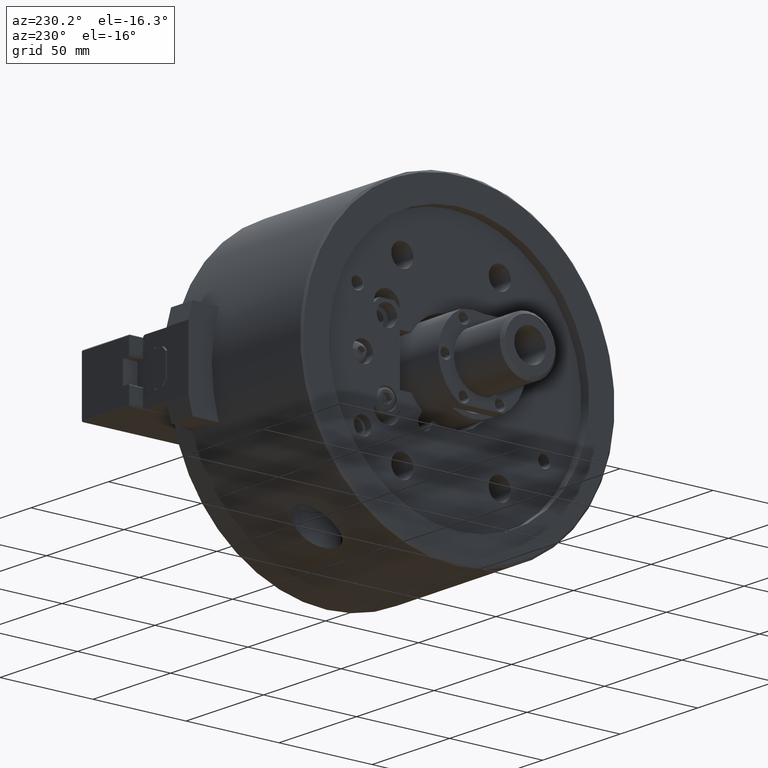
[diagram: clean part render]
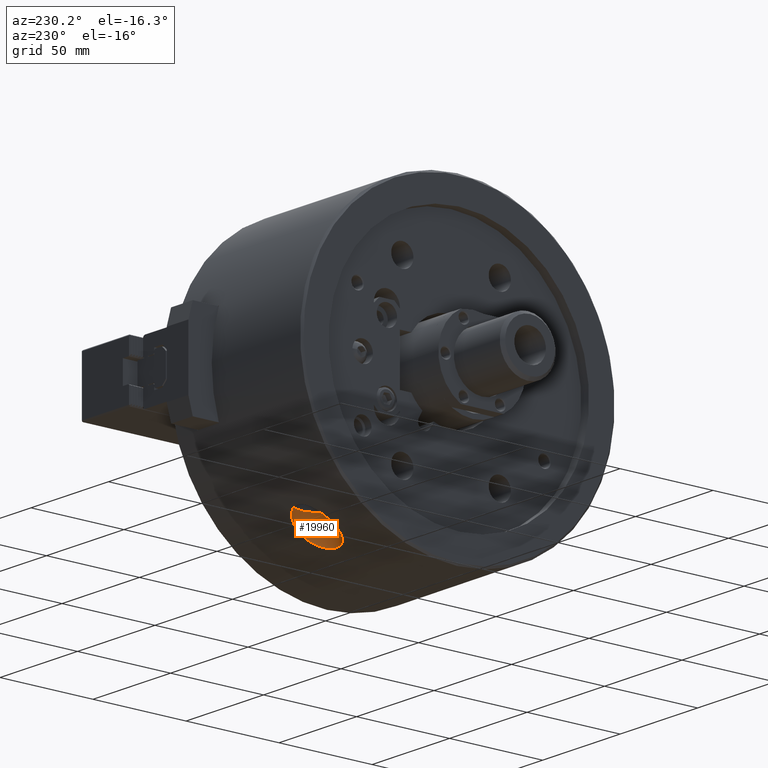
[diagram: same view with one face highlighted and labeled with its STEP entity id]
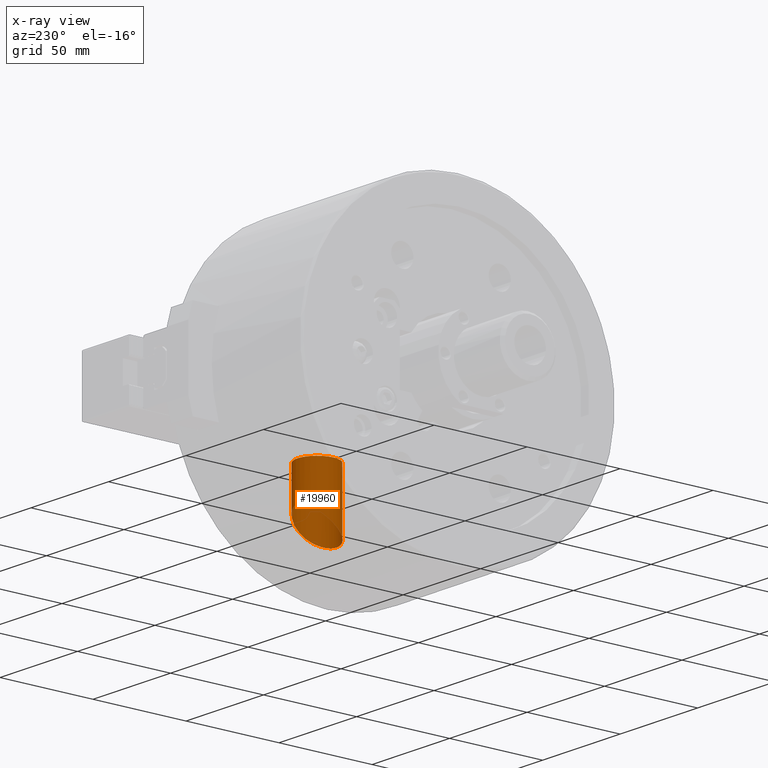
[diagram: x-ray of the same camera — body ghosted, the highlighted face saturated]
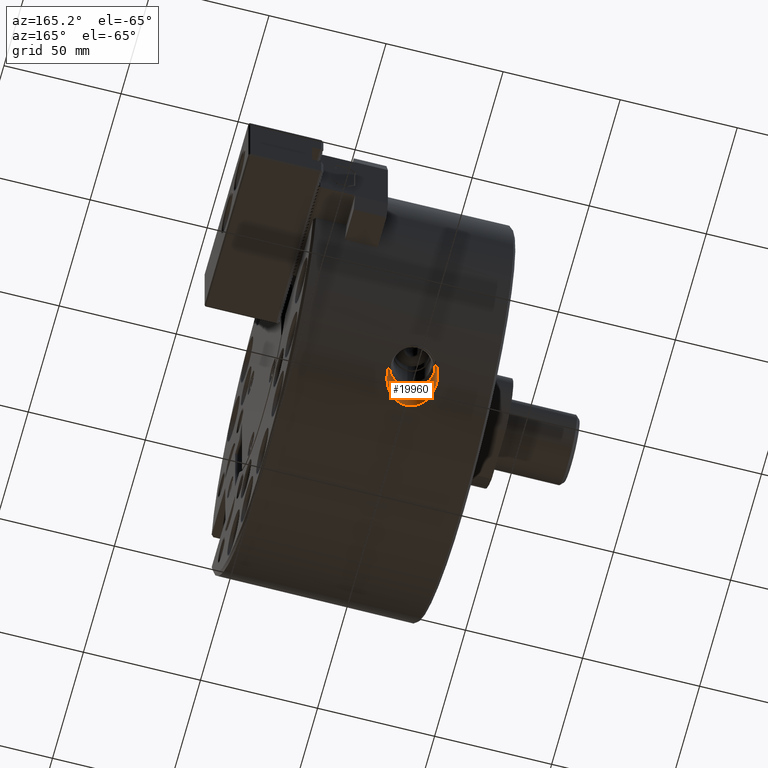
[diagram: same view with one face highlighted and labeled with its STEP entity id]
A machine part, auxiliary view. The second image highlights one B-rep face of the part: STEP entity #19960.
The next image is the same camera in x-ray: the body ghosted, the highlighted face saturated — about 1% of this face is hidden behind the body in this view.
A second angle (auxiliary view) of the same face is appended — the face is thin or edge-on in the first view.
In plain terms, the highlighted cylindrical surface (bore or boss wall) has radius 10.5 mm, axis along (0, 0, 1).
Its self-contained STEP definition (entity closure, byte-faithful):
#200=B_SPLINE_CURVE_WITH_KNOTS('',3,(#28858,#28859,#28860,#28861,#28862,
#28863,#28864,#28865,#28866,#28867,#28868,#28869,#28870,#28871,#28872,#28873,
#28874,#28875,#28876,#28877,#28878,#28879),.UNSPECIFIED.,.T.,.F.,(1,1,1,
1,1,1,1,1,1,1,1,1,1,1,1,1,1,1,1,1,1,1,1,1,1,1),(-0.0067951657441945,-0.00453011049612967,
-0.00226505524806483,0.,0.00453011049612967,0.00906022099225934,0.013590331488389,
0.0181204419845187,0.0226505524806484,0.027180662976778,0.0317107734729077,
0.0362408839690374,0.040770994465167,0.0453011049612967,0.0498312154574264,
0.0520962707054912,0.054361325953556,0.0588914364496857,0.0634215469458154,
0.0656866021938802,0.067951657441945,0.0702167126900099,0.0724817679380747,
0.0770118784342044,0.0815419889303341,0.0860720994264637),.UNSPECIFIED.);
#318=CYLINDRICAL_SURFACE('',#21593,10.5);
#5357=ORIENTED_EDGE('',*,*,#10262,.T.);
#5358=ORIENTED_EDGE('',*,*,#10569,.T.);
#10262=EDGE_CURVE('',#13028,#13028,#200,.T.);
#10569=EDGE_CURVE('',#13308,#13308,#15207,.T.);
#13028=VERTEX_POINT('',#28880);
#13308=VERTEX_POINT('',#29687);
#15207=CIRCLE('',#21594,10.5);
#15995=EDGE_LOOP('',(#5357));
#15996=EDGE_LOOP('',(#5358));
#17628=FACE_BOUND('',#15995,.T.);
#17629=FACE_BOUND('',#15996,.T.);
#19960=ADVANCED_FACE('',(#17628,#17629),#318,.F.);
#21593=AXIS2_PLACEMENT_3D('',#29685,#23986,#23987);
#21594=AXIS2_PLACEMENT_3D('',#29686,#23988,#23989);
#23986=DIRECTION('',(0.,0.,1.));
#23987=DIRECTION('',(1.,0.,0.));
#23988=DIRECTION('',(0.,0.,1.));
#23989=DIRECTION('',(1.,0.,0.));
#28858=CARTESIAN_POINT('',(-41.116023566775,49.3957757775034,-68.5713406250243));
#28859=CARTESIAN_POINT('',(-40.8860350717848,46.8694244894045,-70.3397653768087));
#28860=CARTESIAN_POINT('',(-41.4455665200622,43.6963007078432,-72.3697210629691));
#28861=CARTESIAN_POINT('',(-43.6416884624326,40.0980392102395,-74.4097814201984));
#28862=CARTESIAN_POINT('',(-47.3241195073679,37.5083250945568,-75.726494704925));
#28863=CARTESIAN_POINT('',(-51.9502514403055,36.6652961600724,-76.1291493281157));
#28864=CARTESIAN_POINT('',(-56.4754353127227,37.8841870801142,-75.5432128786783));
#28865=CARTESIAN_POINT('',(-59.9126208675422,40.7480045220219,-74.0594421004546));
#28866=CARTESIAN_POINT('',(-61.8015141912988,44.4361859021067,-71.9203042567079));
#28867=CARTESIAN_POINT('',(-62.1942857871347,48.3043278321015,-69.3838243549597));
#28868=CARTESIAN_POINT('',(-61.2530877948235,51.9477855616027,-66.6935266478575));
#28869=CARTESIAN_POINT('',(-59.0859897536426,55.1067230265429,-64.0947330130201));
#28870=CARTESIAN_POINT('',(-56.2247248709771,57.0755163712914,-62.3179235071252));
#28871=CARTESIAN_POINT('',(-53.3487904639801,57.9204810080211,-61.5268824594386));
#28872=CARTESIAN_POINT('',(-50.2520750184134,58.128427728314,-61.3289398073449));
#28873=CARTESIAN_POINT('',(-46.5392483300532,57.0884122598801,-62.3178292958457));
#28874=CARTESIAN_POINT('',(-43.9008094834054,54.9375961551223,-64.2267469060337));
#28875=CARTESIAN_POINT('',(-42.4227638783314,52.8897127194756,-65.9118449373621));
#28876=CARTESIAN_POINT('',(-41.6077261076278,51.1810291853,-67.2485814860345));
#28877=CARTESIAN_POINT('',(-41.116023566775,49.3957757775034,-68.5713406250243));
#28878=CARTESIAN_POINT('',(-40.8860350717848,46.8694244894045,-70.3397653768087));
#28879=CARTESIAN_POINT('',(-41.4455665200622,43.6963007078432,-72.3697210629691));
#28880=CARTESIAN_POINT('',(-41.,47.5,-69.8856208386246));
#29685=CARTESIAN_POINT('',(-51.5,47.5,-84.5));
#29686=CARTESIAN_POINT('',(-51.5,47.5,-41.5));
#29687=CARTESIAN_POINT('',(-41.,47.5,-41.5));